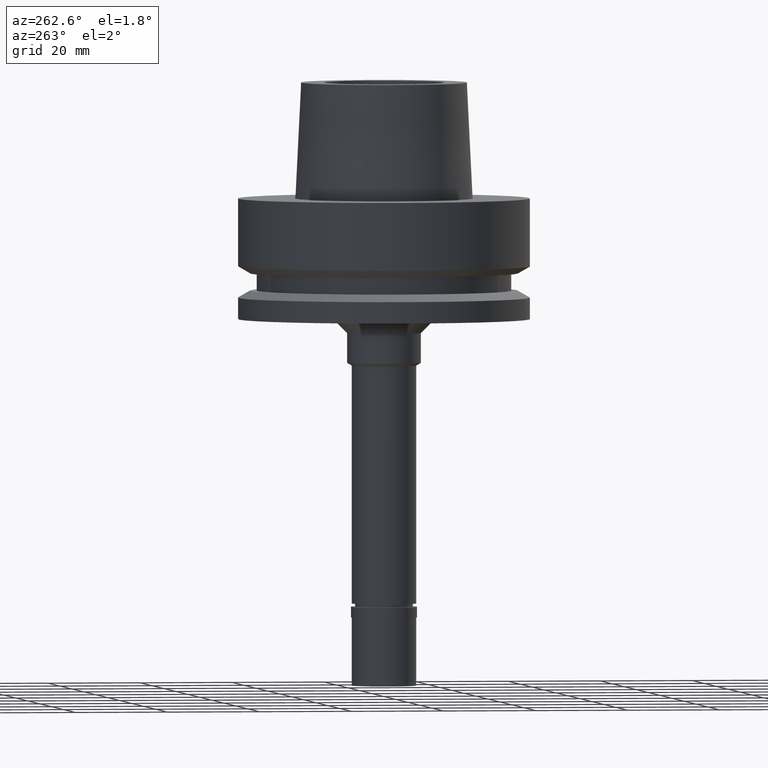
[diagram: clean part render]
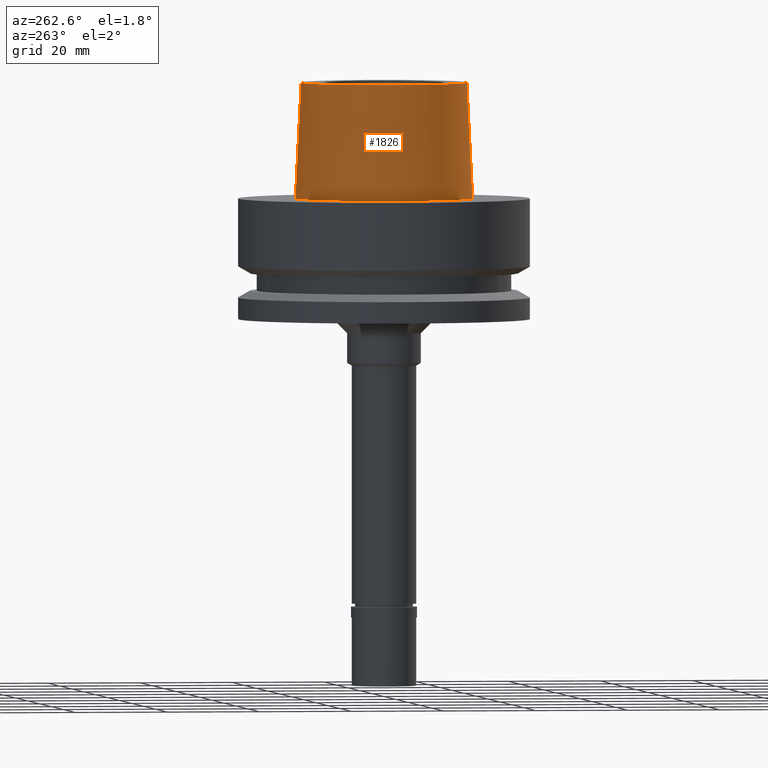
[diagram: same view with one face highlighted and labeled with its STEP entity id]
A machine part, auxiliary view. The second image highlights one B-rep face of the part: STEP entity #1826.
In plain terms, the highlighted conical surface has half-angle 2.862 deg.
Its self-contained STEP definition (entity closure, byte-faithful):
#27 = LINE ( 'NONE', #689, #1292 ) ;
#29 = LINE ( 'NONE', #2178, #2516 ) ;
#72 = CIRCLE ( 'NONE', #1104, 18.00000182882000033 ) ;
#75 = EDGE_CURVE ( 'NONE', #905, #1587, #29, .T. ) ;
#109 = CARTESIAN_POINT ( 'NONE',  ( 0.0000000000000000000, -18.00000182882000033, 25.00000000000000000 ) ) ;
#334 = DIRECTION ( 'NONE',  ( 0.0000000000000000000, 0.0000000000000000000, 1.000000000000000000 ) ) ;
#492 = DIRECTION ( 'NONE',  ( 0.0000000000000000000, 0.04993752584486958745, -0.9987523434327917338 ) ) ;
#498 = VERTEX_POINT ( 'NONE', #1056 ) ;
#521 = DIRECTION ( 'NONE',  ( 0.0000000000000000000, 0.0000000000000000000, -1.000000000000000000 ) ) ;
#667 = EDGE_CURVE ( 'NONE', #1755, #498, #27, .T. ) ;
#689 = CARTESIAN_POINT ( 'NONE',  ( 0.0000000000000000000, 18.00000182882000033, 25.00000000000000000 ) ) ;
#750 = DIRECTION ( 'NONE',  ( 0.0000000000000000000, 0.0000000000000000000, -1.000000000000000000 ) ) ;
#887 = CONICAL_SURFACE ( 'NONE', #2247, 18.62500068580999724, 0.04995830450907576964 ) ;
#905 = VERTEX_POINT ( 'NONE', #109 ) ;
#932 = CARTESIAN_POINT ( 'NONE',  ( 0.0000000000000000000, 0.0000000000000000000, 25.00000000000000000 ) ) ;
#1003 = DIRECTION ( 'NONE',  ( 0.0000000000000000000, 1.000000000000000000, 0.0000000000000000000 ) ) ;
#1022 = FACE_OUTER_BOUND ( 'NONE', #2679, .T. ) ;
#1056 = CARTESIAN_POINT ( 'NONE',  ( 0.0000000000000000000, 19.24999954280000125, 2.664535259100000578E-13 ) ) ;
#1104 = AXIS2_PLACEMENT_3D ( 'NONE', #932, #521, #1158 ) ;
#1158 = DIRECTION ( 'NONE',  ( 0.0000000000000000000, -1.000000000000000000, 0.0000000000000000000 ) ) ;
#1190 = DIRECTION ( 'NONE',  ( 0.0000000000000000000, -1.000000000000000000, 0.0000000000000000000 ) ) ;
#1287 = EDGE_CURVE ( 'NONE', #905, #1755, #72, .T. ) ;
#1292 = VECTOR ( 'NONE', #492, 999.9999999999998863 ) ;
#1448 = CARTESIAN_POINT ( 'NONE',  ( 0.0000000000000000000, 0.0000000000000000000, 12.50000000000000000 ) ) ;
#1587 = VERTEX_POINT ( 'NONE', #1775 ) ;
#1648 = ORIENTED_EDGE ( 'NONE', *, *, #2630, .T. ) ;
#1717 = ORIENTED_EDGE ( 'NONE', *, *, #667, .T. ) ;
#1755 = VERTEX_POINT ( 'NONE', #2225 ) ;
#1775 = CARTESIAN_POINT ( 'NONE',  ( 0.0000000000000000000, -19.24999954280000125, 2.664535259100000578E-13 ) ) ;
#1826 = ADVANCED_FACE ( 'NONE', ( #1022 ), #887, .T. ) ;
#1974 = DIRECTION ( 'NONE',  ( 0.0000000000000000000, -0.04993752584486958745, -0.9987523434327917338 ) ) ;
#2057 = CARTESIAN_POINT ( 'NONE',  ( 0.0000000000000000000, 0.0000000000000000000, 3.979039320256999774E-13 ) ) ;
#2176 = ORIENTED_EDGE ( 'NONE', *, *, #75, .F. ) ;
#2178 = CARTESIAN_POINT ( 'NONE',  ( 0.0000000000000000000, -18.00000182882000033, 25.00000000000000000 ) ) ;
#2203 = CIRCLE ( 'NONE', #2667, 19.24999954280000125 ) ;
#2225 = CARTESIAN_POINT ( 'NONE',  ( 0.0000000000000000000, 18.00000182882000033, 25.00000000000000000 ) ) ;
#2247 = AXIS2_PLACEMENT_3D ( 'NONE', #1448, #750, #1190 ) ;
#2516 = VECTOR ( 'NONE', #1974, 999.9999999999998863 ) ;
#2595 = ORIENTED_EDGE ( 'NONE', *, *, #1287, .T. ) ;
#2630 = EDGE_CURVE ( 'NONE', #498, #1587, #2203, .T. ) ;
#2667 = AXIS2_PLACEMENT_3D ( 'NONE', #2057, #334, #1003 ) ;
#2679 = EDGE_LOOP ( 'NONE', ( #1648, #2176, #2595, #1717 ) ) ;